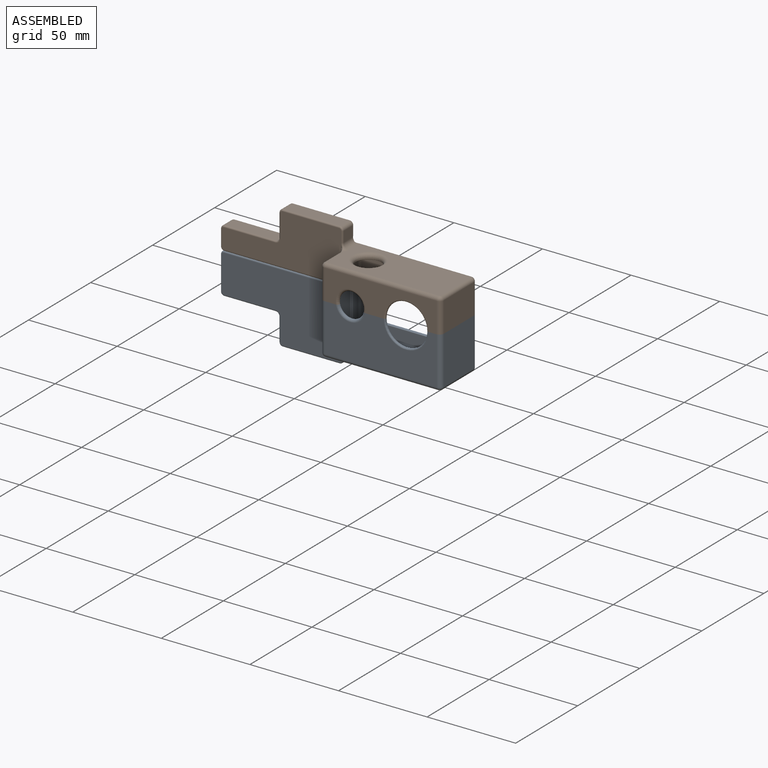
[diagram: assembled view]
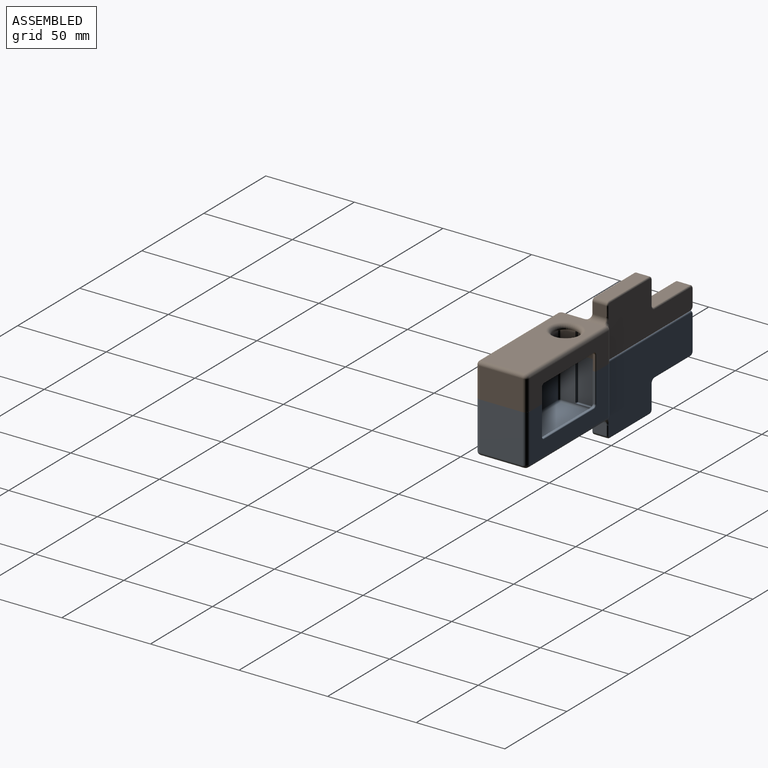
[diagram: assembled view, second angle]
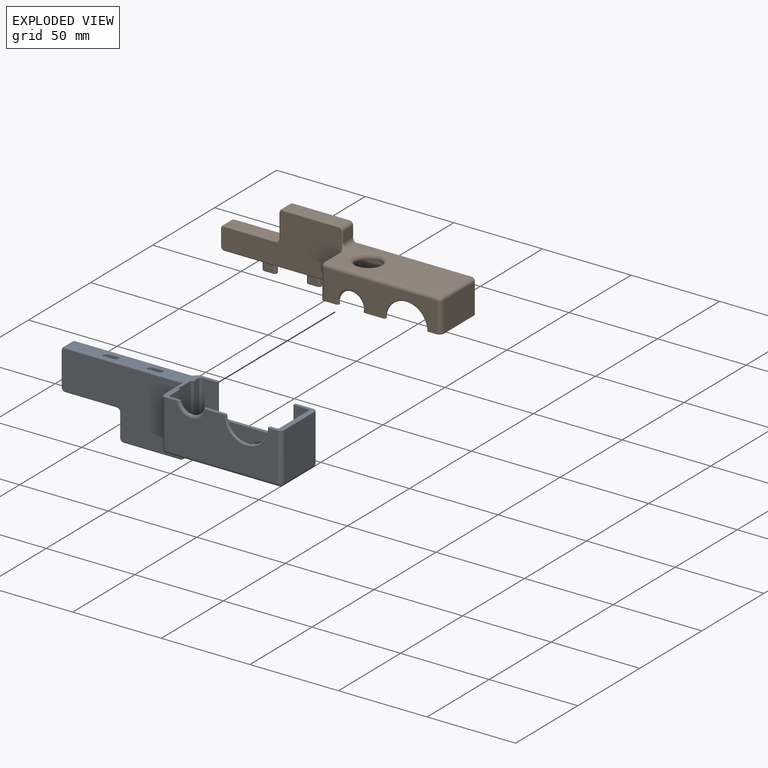
[diagram: exploded view]
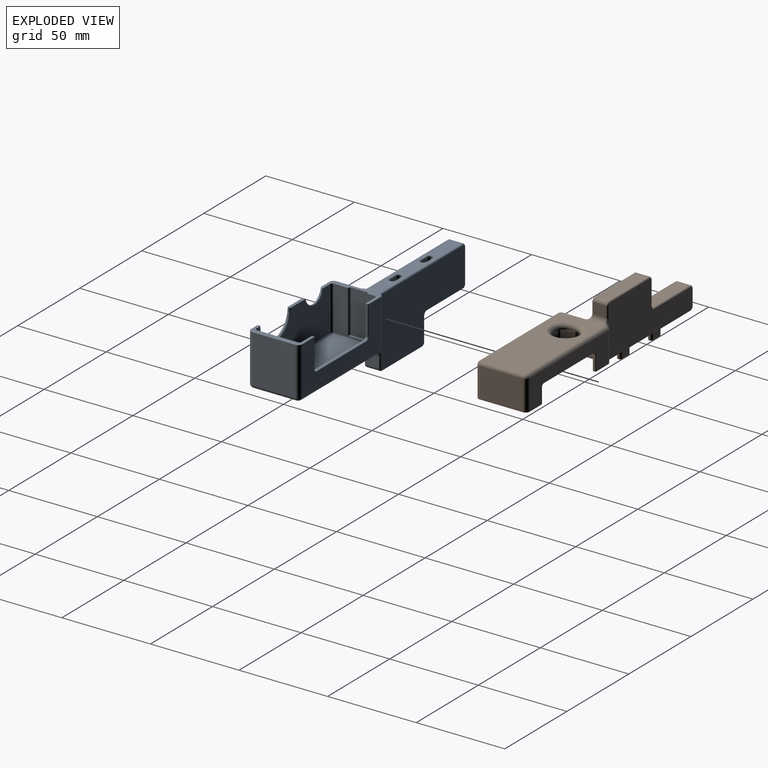
[diagram: exploded view, second angle]
ASSEMBLY  parts=2 mates=3
PART A: 146 faces, bbox 137.9x29.8x43.9 mm
  f0: plane 80.26x29.76mm, normal (0,0,1), area 527.7mm2, adj f1,f2,f5,f6,f9,f17,f21,f24
  f1: plane 63.23x27mm, normal (0,1,0), area 902.8mm2, adj f0,f3,f37,f38,f69,f136,f137,f138
  f2: plane 59.6x24.8mm, normal (0,-1,0), area 673.6mm2, adj f0,f3,f23,f24,f25,f141,f142,f143
  f3: plane 29x12.5mm, normal (0,0,1), area 110.1mm2, adj f1,f2,f5,f8,f9,f18,f20,f22
  f4: plane 12.8x1.83mm, normal (0,0,1), area 21.5mm2, adj f5,f9,f20,f33,f34,f35,f36
  f5: plane 59.6x24.8mm, normal (0,1,0), area 1166.7mm2, adj f0,f3,f4,f21,f22,f32,f34,f36
  f6: plane 27.05x14.19mm, normal (-1,0,0), area 377.8mm2, adj f0,f39,f75,f77,f78,f85
  f7: plane 64x25.14mm, normal (0,0,-1), area 1590mm2, adj f69,f70,f71,f72,f73,f74,f75,f82
  f8: plane 27x24.2mm, normal (1,0,0), area 653.4mm2, adj f3,f38,f40,f71
  f9: plane 63.2x27mm, normal (0,-1,0), area 1373.2mm2, adj f0,f3,f4,f33,f35,f39,f40,f73
  f10: plane 67.55x38.55mm, normal (0,-1,0), area 2005.2mm2, adj f57,f58,f59,f60,f61,f62,f63,f64
  f11: plane 68.19x38.4mm, normal (0,1,0), area 2020mm2, adj f46,f47,f48,f49,f50,f51,f52,f53
  f12: plane 32x7.4mm, normal (0,0,-1), area 236.8mm2, adj f44,f45,f48,f59
  f13: plane 13x7.4mm, normal (-1,0,0), area 96.2mm2, adj f41,f45,f50,f61
  f14: plane 7.4x6mm, normal (1,0,0), area 44.4mm2, adj f44,f46,f57,f83,f86
  f15: plane 29x7.4mm, normal (0,0,-1), area 214.6mm2, adj f41,f42,f52,f63
  f16: plane 19x7.4mm, normal (-1,0,0), area 140.6mm2, adj f42,f43,f54,f65
  f17: plane 24.95x23.25mm, normal (1,0,0), area 296.2mm2, adj f0,f21,f24,f28,f124,f125,f126,f129
  f18: plane 24.8x23.1mm, normal (-1,0,0), area 572.9mm2, adj f3,f22,f23,f29
  f19: plane 59.6x23.1mm, normal (0,0,1), area 1376.8mm2, adj f25,f28,f29,f32
  f20: cylinder r=11.75mm len=23.5mm, axis (0,-1,0), area 5.5mm2, adj f3,f4,f35,f36
  f21: cylinder r=1.2mm len=24.8mm, axis (0,0,-1), area 46.7mm2, adj f0,f5,f17,f30
  f22: cylinder r=1.2mm len=24.8mm, axis (0,0,1), area 46.7mm2, adj f3,f5,f18,f31
  f23: cylinder r=1.2mm len=24.8mm, axis (0,0,-1), area 46.7mm2, adj f2,f3,f18,f27
  f24: cylinder r=1.2mm len=24.8mm, axis (0,0,1), area 46.7mm2, adj f0,f2,f17,f26
  f25: cylinder r=1.2mm len=59.6mm, axis (-1,0,0), area 112.3mm2, adj f2,f19,f26,f27
  f26: sphere r=1.2mm, area 2.3mm2, adj f24,f25,f28
  f27: sphere r=1.2mm, area 1.4mm2, adj f23,f25,f29
  f28: cylinder r=1.2mm len=23.1mm, axis (0,-1,0), area 43.5mm2, adj f17,f19,f26,f30
  f29: cylinder r=1.2mm len=23.1mm, axis (0,1,0), area 43.5mm2, adj f18,f19,f27,f31
  f30: sphere r=1.2mm, area 2.3mm2, adj f21,f28,f32
  f31: sphere r=1.2mm, area 2.3mm2, adj f22,f29,f32
  f32: cylinder r=1.2mm len=59.6mm, axis (1,0,0), area 112.3mm2, adj f5,f19,f30,f31
  f33: torus R=8.4mm, axis (0,-1,0), area 44mm2, adj f0,f4,f9,f34
  f34: torus R=7.4mm, axis (0,1,0), area 12.6mm2, adj f0,f4,f5,f33
  f35: torus R=12.55mm, axis (0,-1,0), area 47.5mm2, adj f3,f4,f9,f20
  f36: torus R=12.55mm, axis (0,-1,0), area 47.5mm2, adj f3,f4,f5,f20
  f37: cylinder r=2.4mm len=27mm, axis (0,0,1), area 67.9mm2, adj f0,f1,f68,f80,f81
  f38: cylinder r=2.4mm len=27mm, axis (0,0,1), area 101.8mm2, adj f1,f3,f8,f70
  f39: cylinder r=2.4mm len=27mm, axis (0,0,1), area 101.8mm2, adj f0,f6,f9,f74
  f40: cylinder r=2.4mm len=27mm, axis (0,0,-1), area 101.8mm2, adj f3,f8,f9,f72
  f41: cylinder r=2mm len=7.4mm, axis (0,-1,0), area 23.2mm2, adj f13,f15,f51,f62
  f42: cylinder r=2mm len=7.4mm, axis (0,1,0), area 23.2mm2, adj f15,f16,f53,f64
  f43: cylinder r=2mm len=7.4mm, axis (0,1,0), area 23.2mm2, adj f0,f16,f55,f66
  f44: cylinder r=2mm len=7.4mm, axis (0,-1,0), area 23.2mm2, adj f12,f14,f47,f58
  f45: cylinder r=2mm len=7.4mm, axis (0,1,0), area 23.2mm2, adj f12,f13,f49,f60
  f46: cylinder r=0.8mm len=5.65mm, axis (0,0,-1), area 6.5mm2, adj f11,f14,f47,f86
  f47: torus R=1.2mm, axis (0,-1,0), area 3.4mm2, adj f11,f44,f46,f48
  f48: cylinder r=0.8mm len=32mm, axis (1,0,0), area 40.2mm2, adj f11,f12,f47,f49
  f49: torus R=1.2mm, axis (0,-1,0), area 3.4mm2, adj f11,f45,f48,f50
  f50: cylinder r=0.8mm len=13mm, axis (0,0,1), area 16.3mm2, adj f11,f13,f49,f51
  f51: torus R=2.8mm, axis (0,-1,0), area 4.5mm2, adj f11,f41,f50,f52
  f52: cylinder r=0.8mm len=29mm, axis (1,0,0), area 36.4mm2, adj f11,f15,f51,f53
  f53: torus R=1.2mm, axis (0,-1,0), area 3.4mm2, adj f11,f42,f52,f54
  f54: cylinder r=0.8mm len=19mm, axis (0,0,1), area 23.9mm2, adj f11,f16,f53,f55
  f55: torus R=1.2mm, axis (0,-1,0), area 3.4mm2, adj f11,f43,f54,f56
  f56: cylinder r=0.8mm len=65.9mm, axis (-1,0,0), area 82.5mm2, adj f0,f11,f55,f81
  f57: cylinder r=0.8mm len=6.86mm, axis (0,0,1), area 7.8mm2, adj f10,f14,f58,f84,f85
  f58: torus R=1.2mm, axis (0,-1,0), area 3.4mm2, adj f10,f44,f57,f59
  f59: cylinder r=0.8mm len=32mm, axis (-1,0,0), area 40.2mm2, adj f10,f12,f58,f60
  f60: torus R=1.2mm, axis (0,-1,0), area 3.4mm2, adj f10,f45,f59,f61
  f61: cylinder r=0.8mm len=13mm, axis (0,0,-1), area 16.3mm2, adj f10,f13,f60,f62
  f62: torus R=2.8mm, axis (0,-1,0), area 4.5mm2, adj f10,f41,f61,f63
  f63: cylinder r=0.8mm len=29mm, axis (-1,0,0), area 36.4mm2, adj f10,f15,f62,f64
  f64: torus R=1.2mm, axis (0,-1,0), area 3.4mm2, adj f10,f42,f63,f65
  f65: cylinder r=0.8mm len=19mm, axis (0,0,-1), area 23.9mm2, adj f10,f16,f64,f66
  f66: torus R=1.2mm, axis (0,-1,0), area 3.4mm2, adj f10,f43,f65,f67
  f67: cylinder r=0.8mm len=65.4mm, axis (1,0,0), area 82.2mm2, adj f0,f10,f66,f78
  f68: torus R=0.4mm, axis (0,0,1), area 2.6mm2, adj f37,f69,f79
  f69: cylinder r=2mm len=63.23mm, axis (1,0,0), area 198.2mm2, adj f1,f7,f68,f70,f79,f88,f89
  f70: torus R=0.4mm, axis (0,0,1), area 8.3mm2, adj f7,f38,f69,f71
  f71: cylinder r=2mm len=24.2mm, axis (0,1,0), area 76mm2, adj f7,f8,f70,f72
  f72: torus R=0.4mm, axis (0,0,1), area 8.3mm2, adj f7,f40,f71,f73
  f73: cylinder r=2mm len=63.2mm, axis (-1,0,0), area 198.5mm2, adj f7,f9,f72,f74
  f74: torus R=0.4mm, axis (0,0,1), area 8.3mm2, adj f7,f39,f73,f75
  f75: cylinder r=2mm len=13.83mm, axis (0,-1,0), area 42.6mm2, adj f6,f7,f74,f85
  f76: torus R=3.6mm, axis (0,-1,0), area 0.7mm2, adj f10,f77,f85
  f77: cylinder r=1.6mm len=26.2mm, axis (0,0,1), area 63.6mm2, adj f6,f10,f76,f78,f85
  f78: torus R=2.4mm, axis (-1,0,0), area 2.9mm2, adj f0,f6,f67,f77
  f79: bspline ~4.51x3.93mm, area 4.3mm2, adj f11,f68,f69,f80,f87,f88
  f80: cylinder r=1.6mm len=26.2mm, axis (0,0,1), area 43.9mm2, adj f11,f37,f79,f81
  f81: bspline ~2.91x1.92mm, area 2.3mm2, adj f0,f37,f56,f80
  f82: torus R=3.8mm, axis (0,0,1), area 1.2mm2, adj f7,f83,f88
  f83: cylinder r=3mm len=7.4mm, axis (0,-1,0), area 34.4mm2, adj f7,f14,f82,f84,f86,f87
  f84: torus R=3.8mm, axis (0,0,1), area 6.6mm2, adj f7,f57,f83,f85
  f85: bspline ~7.71x3.39mm, area 14.2mm2, adj f6,f10,f57,f75,f76,f77,f84
  f86: torus R=4mm, axis (0,-1,0), area 4.9mm2, adj f11,f14,f46,f83,f87
  f87: bspline ~1.76x1.41mm, area 1mm2, adj f79,f83,f86,f88
  f88: bspline ~2.9x1.66mm, area 1.9mm2, adj f69,f79,f82,f87,f89
  f89: bspline ~0.92x0.8mm, area 0mm2, adj f7,f69,f88
  f90: plane 5.4x5.2mm, normal (0,1,0), area 28.1mm2, adj f91,f93,f103,f107
  f91: cylinder r=1.5mm len=5.4mm, axis (0,0,1), area 25.4mm2, adj f90,f92,f101,f105
  f92: plane 5.4x5.2mm, normal (0,-1,0), area 28.1mm2, adj f91,f93,f100,f104
  f93: cylinder r=1.5mm len=5.4mm, axis (0,0,1), area 25.4mm2, adj f90,f92,f102,f106
  f94: plane 7x1.8mm, normal (0,0,1), area 11.9mm2, adj f104,f105,f106,f107
  f95: plane 5.4x5.2mm, normal (0,1,0), area 28.1mm2, adj f96,f98,f111,f115
  f96: cylinder r=1.5mm len=5.4mm, axis (0,0,1), area 25.4mm2, adj f95,f97,f109,f113
  f97: plane 5.4x5.2mm, normal (0,-1,0), area 28.1mm2, adj f96,f98,f108,f112
  f98: cylinder r=1.5mm len=5.4mm, axis (0,0,1), area 25.4mm2, adj f95,f97,f110,f114
  f99: plane 7x1.8mm, normal (0,0,1), area 11.9mm2, adj f112,f113,f114,f115
  f100: cylinder r=0.6mm len=5.2mm, axis (1,0,0), area 4.9mm2, adj f0,f92,f101,f102
  f101: torus R=2.1mm, axis (0,0,1), area 5.1mm2, adj f0,f91,f100,f103
  f102: torus R=2.1mm, axis (0,0,1), area 5.1mm2, adj f0,f93,f100,f103
  f103: cylinder r=0.6mm len=5.2mm, axis (-1,0,0), area 4.9mm2, adj f0,f90,f101,f102
  f104: cylinder r=0.6mm len=5.2mm, axis (-1,0,0), area 4.9mm2, adj f92,f94,f105,f106
  f105: torus R=0.9mm, axis (0,0,1), area 3.8mm2, adj f91,f94,f104,f107
  f106: torus R=0.9mm, axis (0,0,1), area 3.8mm2, adj f93,f94,f104,f107
  f107: cylinder r=0.6mm len=5.2mm, axis (1,0,0), area 4.9mm2, adj f90,f94,f105,f106
  f108: cylinder r=0.6mm len=5.2mm, axis (1,0,0), area 4.9mm2, adj f0,f97,f109,f110
  f109: torus R=2.1mm, axis (0,0,1), area 5.1mm2, adj f0,f96,f108,f111
  f110: torus R=2.1mm, axis (0,0,1), area 5.1mm2, adj f0,f98,f108,f111
  f111: cylinder r=0.6mm len=5.2mm, axis (-1,0,0), area 4.9mm2, adj f0,f95,f109,f110
  f112: cylinder r=0.6mm len=5.2mm, axis (-1,0,0), area 4.9mm2, adj f97,f99,f113,f114
  f113: torus R=0.9mm, axis (0,0,1), area 3.8mm2, adj f96,f99,f112,f115
  f114: torus R=0.9mm, axis (0,0,1), area 3.8mm2, adj f98,f99,f112,f115
  f115: cylinder r=0.6mm len=5.2mm, axis (1,0,0), area 4.9mm2, adj f95,f99,f113,f114
  f116: plane 16.6x0.95mm, normal (-1,0,0), area 15.8mm2, adj f3,f119,f136,f141
  f117: plane 40.2x0.95mm, normal (0,0,1), area 38.2mm2, adj f119,f120,f138,f143
  f118: plane 16.6x0.95mm, normal (1,0,0), area 15.8mm2, adj f0,f120,f140,f145
  f119: cylinder r=1.4mm len=1.4mm, axis (0,1,0), area 2.1mm2, adj f116,f117,f137,f142
  f120: cylinder r=1.4mm len=1.4mm, axis (0,-1,0), area 2.1mm2, adj f117,f118,f139,f144
  f121: plane 24.1x0.4mm, normal (0,1,0), area 9.6mm2, adj f0,f125,f128,f130
  f122: plane 24.1x0.4mm, normal (0,-1,0), area 9.6mm2, adj f0,f126,f127,f134
  f123: plane 24.1x9.7mm, normal (1,0,0), area 233.8mm2, adj f0,f127,f128,f132
  f124: plane 9.91x0.8mm, normal (0,0,1), area 7.8mm2, adj f17,f129,f130,f132,f134,f135
  f125: cylinder r=0.4mm len=24.1mm, axis (0,0,-1), area 15.1mm2, adj f0,f17,f121,f129
  f126: cylinder r=0.4mm len=24.1mm, axis (0,0,1), area 15.1mm2, adj f0,f17,f122,f135
  f127: cylinder r=0.4mm len=24.1mm, axis (0,0,-1), area 15.1mm2, adj f0,f122,f123,f133
  f128: cylinder r=0.4mm len=24.1mm, axis (0,0,1), area 15.1mm2, adj f0,f121,f123,f131
  f129: torus R=0.8mm, axis (0,0,1), area 0.3mm2, adj f17,f124,f125,f130
  f130: cylinder r=0.4mm len=0.4mm, axis (1,0,0), area 0.3mm2, adj f121,f124,f129,f131
  f131: sphere r=0.4mm, area 0.3mm2, adj f128,f130,f132
  f132: cylinder r=0.4mm len=9.7mm, axis (0,-1,0), area 6.1mm2, adj f123,f124,f131,f133
  f133: sphere r=0.4mm, area 0.3mm2, adj f127,f132,f134
  f134: cylinder r=0.4mm len=0.4mm, axis (-1,0,0), area 0.3mm2, adj f122,f124,f133,f135
  f135: torus R=0.8mm, axis (0,0,1), area 0.3mm2, adj f17,f124,f126,f134
  f136: cylinder r=0.4mm len=16.6mm, axis (0,0,-1), area 10.4mm2, adj f1,f3,f116,f137
  f137: torus R=1.8mm, axis (0,-1,0), area 1.5mm2, adj f1,f119,f136,f138
  f138: cylinder r=0.4mm len=40.2mm, axis (-1,0,0), area 25.3mm2, adj f1,f117,f137,f139
  f139: torus R=1.8mm, axis (0,-1,0), area 1.5mm2, adj f1,f120,f138,f140
  f140: cylinder r=0.4mm len=16.6mm, axis (0,0,1), area 10.4mm2, adj f0,f1,f118,f139
  f141: cylinder r=0.4mm len=16.6mm, axis (0,0,1), area 10.4mm2, adj f2,f3,f116,f142
  f142: torus R=1.8mm, axis (0,-1,0), area 1.5mm2, adj f2,f119,f141,f143
  f143: cylinder r=0.4mm len=40.2mm, axis (1,0,0), area 25.3mm2, adj f2,f117,f142,f144
  f144: torus R=1.8mm, axis (0,-1,0), area 1.5mm2, adj f2,f120,f143,f145
  f145: cylinder r=0.4mm len=16.6mm, axis (0,0,-1), area 10.4mm2, adj f0,f2,f118,f144
PART B: 149 faces, bbox 137.9x29.8x36.9 mm
  f0: plane 80.26x29.76mm, normal (0,0,-1), area 532.4mm2, adj f1,f2,f5,f7,f10,f12,f23,f24
  f1: plane 63.23x17mm, normal (0,1,0), area 620.8mm2, adj f0,f3,f25,f26,f70,f139,f140,f141
  f2: plane 59.6x14.8mm, normal (0,-1,0), area 428mm2, adj f0,f3,f21,f24,f33,f144,f145,f146
  f3: plane 29x12.5mm, normal (0,0,-1), area 110.1mm2, adj f1,f2,f5,f9,f10,f11,f14,f21
  f4: plane 12.8x1.83mm, normal (0,0,-1), area 21.5mm2, adj f5,f10,f14,f72,f73,f74,f75
  f5: plane 59.6x14.8mm, normal (0,1,0), area 526.6mm2, adj f0,f3,f4,f22,f23,f32,f72,f75
  f6: plane 13x7.4mm, normal (-1,0,0), area 96.2mm2, adj f37,f41,f48,f59
  f7: plane 17.05x14.19mm, normal (-1,0,0), area 237.8mm2, adj f0,f27,f64,f79,f80,f87
  f8: plane 64x25.14mm, normal (0,0,1), area 1324.1mm2, adj f64,f65,f66,f67,f68,f69,f70,f77
  f9: plane 24.2x17mm, normal (1,0,0), area 411.4mm2, adj f3,f26,f28,f68
  f10: plane 63.2x17mm, normal (0,-1,0), area 691.1mm2, adj f0,f3,f4,f27,f28,f66,f73,f74
  f11: plane 23.1x14.8mm, normal (-1,0,0), area 341.9mm2, adj f3,f21,f22,f36
  f12: plane 23.25x14.95mm, normal (1,0,0), area 178.2mm2, adj f0,f23,f24,f29,f127,f128,f131,f132
  f13: plane 59.6x23.1mm, normal (0,0,-1), area 1204.7mm2, adj f29,f32,f33,f36,f78
  f14: cylinder r=11.75mm len=23.5mm, axis (0,-1,0), area 5.5mm2, adj f3,f4,f72,f73
  f15: plane 7.4x6mm, normal (1,0,0), area 44.4mm2, adj f40,f52,f63,f86,f92
  f16: plane 67.55x28.55mm, normal (0,-1,0), area 1339.2mm2, adj f42,f43,f44,f45,f46,f47,f48,f49
  f17: plane 32x7.4mm, normal (0,0,1), area 236.8mm2, adj f40,f41,f50,f61
  f18: plane 68.19x28.4mm, normal (0,1,0), area 1349mm2, adj f53,f54,f55,f56,f57,f58,f59,f60
  f19: plane 29x7.4mm, normal (0,0,1), area 214.6mm2, adj f37,f39,f46,f57
  f20: plane 9x7.4mm, normal (-1,0,0), area 66.6mm2, adj f38,f39,f44,f55
  f21: cylinder r=1.2mm len=14.8mm, axis (0,0,1), area 27.9mm2, adj f2,f3,f11,f35
  f22: cylinder r=1.2mm len=14.8mm, axis (0,0,-1), area 27.9mm2, adj f3,f5,f11,f34
  f23: cylinder r=1.2mm len=14.8mm, axis (0,0,1), area 27.9mm2, adj f0,f5,f12,f30
  f24: cylinder r=1.2mm len=14.8mm, axis (0,0,-1), area 27.9mm2, adj f0,f2,f12,f31
  f25: cylinder r=2.4mm len=17mm, axis (0,0,1), area 42.8mm2, adj f0,f1,f71,f82,f83
  f26: cylinder r=2.4mm len=17mm, axis (0,0,1), area 64.1mm2, adj f1,f3,f9,f69
  f27: cylinder r=2.4mm len=17mm, axis (0,0,1), area 64.1mm2, adj f0,f7,f10,f65
  f28: cylinder r=2.4mm len=17mm, axis (0,0,-1), area 64.1mm2, adj f3,f9,f10,f67
  f29: cylinder r=1.2mm len=23.1mm, axis (0,1,0), area 43.5mm2, adj f12,f13,f30,f31
  f30: sphere r=1.2mm, area 2.3mm2, adj f23,f29,f32
  f31: sphere r=1.2mm, area 1.4mm2, adj f24,f29,f33
  f32: cylinder r=1.2mm len=59.6mm, axis (-1,0,0), area 112.3mm2, adj f5,f13,f30,f34
  f33: cylinder r=1.2mm len=59.6mm, axis (1,0,0), area 112.3mm2, adj f2,f13,f31,f35
  f34: sphere r=1.2mm, area 2.3mm2, adj f22,f32,f36
  f35: sphere r=1.2mm, area 3.1mm2, adj f21,f33,f36
  f36: cylinder r=1.2mm len=23.1mm, axis (0,-1,0), area 43.5mm2, adj f11,f13,f34,f35
  f37: cylinder r=2mm len=7.4mm, axis (0,1,0), area 23.2mm2, adj f6,f19,f47,f58
  f38: cylinder r=2mm len=7.4mm, axis (0,-1,0), area 23.2mm2, adj f0,f20,f43,f54
  f39: cylinder r=2mm len=7.4mm, axis (0,-1,0), area 23.2mm2, adj f19,f20,f45,f56
  f40: cylinder r=2mm len=7.4mm, axis (0,1,0), area 23.2mm2, adj f15,f17,f51,f62
  f41: cylinder r=2mm len=7.4mm, axis (0,-1,0), area 23.2mm2, adj f6,f17,f49,f60
  f42: cylinder r=0.8mm len=65.4mm, axis (-1,0,0), area 82.2mm2, adj f0,f16,f43,f79
  f43: torus R=1.2mm, axis (0,-1,0), area 3.4mm2, adj f16,f38,f42,f44
  f44: cylinder r=0.8mm len=9mm, axis (0,0,-1), area 11.3mm2, adj f16,f20,f43,f45
  f45: torus R=1.2mm, axis (0,-1,0), area 3.4mm2, adj f16,f39,f44,f46
  f46: cylinder r=0.8mm len=29mm, axis (1,0,0), area 36.4mm2, adj f16,f19,f45,f47
  f47: torus R=2.8mm, axis (0,-1,0), area 4.5mm2, adj f16,f37,f46,f48
  f48: cylinder r=0.8mm len=13mm, axis (0,0,-1), area 16.3mm2, adj f6,f16,f47,f49
  f49: torus R=1.2mm, axis (0,-1,0), area 3.4mm2, adj f16,f41,f48,f50
  f50: cylinder r=0.8mm len=32mm, axis (1,0,0), area 40.2mm2, adj f16,f17,f49,f51
  f51: torus R=1.2mm, axis (0,-1,0), area 3.4mm2, adj f16,f40,f50,f52
  f52: cylinder r=0.8mm len=6.86mm, axis (0,0,1), area 7.8mm2, adj f15,f16,f51,f87,f88
  f53: cylinder r=0.8mm len=65.9mm, axis (1,0,0), area 82.5mm2, adj f0,f18,f54,f82
  f54: torus R=1.2mm, axis (0,-1,0), area 3.4mm2, adj f18,f38,f53,f55
  f55: cylinder r=0.8mm len=9mm, axis (0,0,1), area 11.3mm2, adj f18,f20,f54,f56
  f56: torus R=1.2mm, axis (0,-1,0), area 3.4mm2, adj f18,f39,f55,f57
  f57: cylinder r=0.8mm len=29mm, axis (-1,0,0), area 36.4mm2, adj f18,f19,f56,f58
  f58: torus R=2.8mm, axis (0,-1,0), area 4.5mm2, adj f18,f37,f57,f59
  f59: cylinder r=0.8mm len=13mm, axis (0,0,1), area 16.3mm2, adj f6,f18,f58,f60
  f60: torus R=1.2mm, axis (0,-1,0), area 3.4mm2, adj f18,f41,f59,f61
  f61: cylinder r=0.8mm len=32mm, axis (-1,0,0), area 40.2mm2, adj f17,f18,f60,f62
  f62: torus R=1.2mm, axis (0,-1,0), area 3.4mm2, adj f18,f40,f61,f63
  f63: cylinder r=0.8mm len=5.65mm, axis (0,0,-1), area 6.5mm2, adj f15,f18,f62,f92
  f64: cylinder r=2mm len=13.83mm, axis (0,1,0), area 42.6mm2, adj f7,f8,f65,f87
  f65: torus R=0.4mm, axis (0,0,1), area 8.3mm2, adj f8,f27,f64,f66
  f66: cylinder r=2mm len=63.2mm, axis (1,0,0), area 198.5mm2, adj f8,f10,f65,f67
  f67: torus R=0.4mm, axis (0,0,1), area 8.3mm2, adj f8,f28,f66,f68
  f68: cylinder r=2mm len=24.2mm, axis (0,-1,0), area 76mm2, adj f8,f9,f67,f69
  f69: torus R=0.4mm, axis (0,0,1), area 8.3mm2, adj f8,f26,f68,f70
  f70: cylinder r=2mm len=63.23mm, axis (-1,0,0), area 198.2mm2, adj f1,f8,f69,f71,f84,f89,f90
  f71: torus R=0.4mm, axis (0,0,1), area 2.6mm2, adj f25,f70,f84
  f72: torus R=12.55mm, axis (0,-1,0), area 47.5mm2, adj f3,f4,f5,f14
  f73: torus R=12.55mm, axis (0,-1,0), area 47.5mm2, adj f3,f4,f10,f14
  f74: torus R=8.4mm, axis (0,-1,0), area 56.7mm2, adj f0,f4,f10,f75
  f75: torus R=7.4mm, axis (0,1,0), area 16.5mm2, adj f0,f4,f5,f74
  f76: cylinder r=7mm len=14mm, axis (0,0,1), area 17.6mm2, adj f77,f78
  f77: torus R=9.2mm, axis (0,0,1), area 169.4mm2, adj f8,f76
  f78: torus R=7.4mm, axis (0,0,-1), area 28.2mm2, adj f13,f76
  f79: torus R=2.4mm, axis (-1,0,0), area 2.9mm2, adj f0,f7,f42,f80
  f80: cylinder r=1.6mm len=16.2mm, axis (0,0,1), area 38.5mm2, adj f7,f16,f79,f81,f87
  f81: torus R=3.6mm, axis (0,-1,0), area 0.7mm2, adj f16,f80,f87
  f82: bspline ~2.91x1.92mm, area 2.3mm2, adj f0,f25,f53,f83
  f83: cylinder r=1.6mm len=16.2mm, axis (0,0,1), area 27.1mm2, adj f18,f25,f82,f84
  f84: bspline ~4.51x3.41mm, area 4.3mm2, adj f18,f70,f71,f83,f90,f91
  f85: torus R=3.8mm, axis (0,0,1), area 1.2mm2, adj f8,f86,f90
  f86: cylinder r=3mm len=7.4mm, axis (0,1,0), area 34.4mm2, adj f8,f15,f85,f88,f91,f92
  f87: bspline ~7.71x3.45mm, area 14.2mm2, adj f7,f16,f52,f64,f80,f81,f88
  f88: torus R=3.8mm, axis (0,0,1), area 6.6mm2, adj f8,f52,f86,f87
  f89: bspline ~0.92x0.8mm, area 0mm2, adj f8,f70,f90
  f90: bspline ~2.95x1.7mm, area 1.9mm2, adj f70,f84,f85,f89,f91
  f91: bspline ~1.76x1.41mm, area 1mm2, adj f84,f86,f90,f92
  f92: torus R=4mm, axis (0,-1,0), area 4.9mm2, adj f15,f18,f63,f86,f91
  f93: plane 5.2x4.8mm, normal (0,1,0), area 25mm2, adj f94,f96,f111,f115
  f94: cylinder r=1.4mm len=4.8mm, axis (0,0,1), area 21.1mm2, adj f93,f95,f112,f116
  f95: plane 5.2x4.8mm, normal (0,-1,0), area 25mm2, adj f94,f96,f114,f118
  f96: cylinder r=1.4mm len=4.8mm, axis (0,0,1), area 21.1mm2, adj f93,f95,f113,f117
  f97: plane 6.8x1.6mm, normal (0,0,-1), area 10.3mm2, adj f115,f116,f117,f118
  f98: plane 5.2x4.8mm, normal (0,1,0), area 25mm2, adj f99,f101,f103,f107
  f99: cylinder r=1.4mm len=4.8mm, axis (0,0,1), area 21.1mm2, adj f98,f100,f104,f108
  f100: plane 5.2x4.8mm, normal (0,-1,0), area 25mm2, adj f99,f101,f106,f110
  f101: cylinder r=1.4mm len=4.8mm, axis (0,0,1), area 21.1mm2, adj f98,f100,f105,f109
  f102: plane 6.8x1.6mm, normal (0,0,-1), area 10.3mm2, adj f107,f108,f109,f110
  f103: cylinder r=0.6mm len=5.2mm, axis (-1,0,0), area 4.9mm2, adj f0,f98,f104,f105
  f104: torus R=2mm, axis (0,0,1), area 4.8mm2, adj f0,f99,f103,f106
  f105: torus R=2mm, axis (0,0,1), area 4.8mm2, adj f0,f101,f103,f106
  f106: cylinder r=0.6mm len=5.2mm, axis (1,0,0), area 4.9mm2, adj f0,f100,f104,f105
  f107: cylinder r=0.6mm len=5.2mm, axis (-1,0,0), area 4.9mm2, adj f98,f102,f108,f109
  f108: torus R=0.8mm, axis (0,0,-1), area 3.5mm2, adj f99,f102,f107,f110
  f109: torus R=0.8mm, axis (0,0,-1), area 3.5mm2, adj f101,f102,f107,f110
  f110: cylinder r=0.6mm len=5.2mm, axis (1,0,0), area 4.9mm2, adj f100,f102,f108,f109
  f111: cylinder r=0.6mm len=5.2mm, axis (-1,0,0), area 4.9mm2, adj f0,f93,f112,f113
  f112: torus R=2mm, axis (0,0,1), area 4.8mm2, adj f0,f94,f111,f114
  f113: torus R=2mm, axis (0,0,1), area 4.8mm2, adj f0,f96,f111,f114
  f114: cylinder r=0.6mm len=5.2mm, axis (1,0,0), area 4.9mm2, adj f0,f95,f112,f113
  f115: cylinder r=0.6mm len=5.2mm, axis (-1,0,0), area 4.9mm2, adj f93,f97,f116,f117
  f116: torus R=0.8mm, axis (0,0,-1), area 3.5mm2, adj f94,f97,f115,f118
  f117: torus R=0.8mm, axis (0,0,-1), area 3.5mm2, adj f96,f97,f115,f118
  f118: cylinder r=0.6mm len=5.2mm, axis (1,0,0), area 4.9mm2, adj f95,f97,f116,f117
  f119: plane 8.6x0.95mm, normal (1,0,0), area 8.2mm2, adj f0,f122,f139,f144
  f120: plane 40.2x0.95mm, normal (0,0,-1), area 38.2mm2, adj f122,f123,f141,f146
  f121: plane 8.6x0.95mm, normal (-1,0,0), area 8.2mm2, adj f3,f123,f143,f148
  f122: cylinder r=1.4mm len=1.4mm, axis (0,1,0), area 2.1mm2, adj f119,f120,f140,f145
  f123: cylinder r=1.4mm len=1.4mm, axis (0,-1,0), area 2.1mm2, adj f120,f121,f142,f147
  f124: plane 14.1x0.4mm, normal (0,1,0), area 5.6mm2, adj f0,f128,f129,f133
  f125: plane 14.1x9.7mm, normal (1,0,0), area 136.8mm2, adj f0,f129,f130,f135
  f126: plane 14.1x0.4mm, normal (0,-1,0), area 5.6mm2, adj f0,f130,f131,f137
  f127: plane 9.91x0.8mm, normal (0,0,-1), area 7.8mm2, adj f12,f132,f133,f135,f137,f138
  f128: cylinder r=0.4mm len=14.1mm, axis (0,0,-1), area 8.9mm2, adj f0,f12,f124,f132
  f129: cylinder r=0.4mm len=14.1mm, axis (0,0,-1), area 8.9mm2, adj f0,f124,f125,f134
  f130: cylinder r=0.4mm len=14.1mm, axis (0,0,1), area 8.9mm2, adj f0,f125,f126,f136
  f131: cylinder r=0.4mm len=14.1mm, axis (0,0,1), area 8.9mm2, adj f0,f12,f126,f138
  f132: torus R=0.8mm, axis (0,0,-1), area 0.3mm2, adj f12,f127,f128,f133
  f133: cylinder r=0.4mm len=0.4mm, axis (-1,0,0), area 0.3mm2, adj f124,f127,f132,f134
  f134: sphere r=0.4mm, area 0.3mm2, adj f129,f133,f135
  f135: cylinder r=0.4mm len=9.7mm, axis (0,1,0), area 6.1mm2, adj f125,f127,f134,f136
  f136: sphere r=0.4mm, area 0.2mm2, adj f130,f135,f137
  f137: cylinder r=0.4mm len=0.4mm, axis (1,0,0), area 0.3mm2, adj f126,f127,f136,f138
  f138: torus R=0.8mm, axis (0,0,-1), area 0.3mm2, adj f12,f127,f131,f137
  f139: cylinder r=0.4mm len=8.6mm, axis (0,0,1), area 5.4mm2, adj f0,f1,f119,f140
  f140: torus R=1.8mm, axis (0,-1,0), area 1.5mm2, adj f1,f122,f139,f141
  f141: cylinder r=0.4mm len=40.2mm, axis (1,0,0), area 25.3mm2, adj f1,f120,f140,f142
  f142: torus R=1.8mm, axis (0,-1,0), area 1.5mm2, adj f1,f123,f141,f143
  f143: cylinder r=0.4mm len=8.6mm, axis (0,0,-1), area 5.4mm2, adj f1,f3,f121,f142
  f144: cylinder r=0.4mm len=8.6mm, axis (0,0,-1), area 5.4mm2, adj f0,f2,f119,f145
  f145: torus R=1.8mm, axis (0,-1,0), area 1.5mm2, adj f2,f122,f144,f146
  f146: cylinder r=0.4mm len=40.2mm, axis (-1,0,0), area 25.3mm2, adj f2,f120,f145,f147
  f147: torus R=1.8mm, axis (0,-1,0), area 1.5mm2, adj f2,f123,f146,f148
  f148: cylinder r=0.4mm len=8.6mm, axis (0,0,1), area 5.4mm2, adj f2,f3,f121,f147
PLACE A at identity
PLACE B at identity fixed
MATE planar A.f16 <-> B.f20  axis (-1,0,0) through (-69,-6.5,-11.5)mm
MATE planar A.f10 <-> B.f16  axis (0,-1,0) through (-30.06,-11,-17.06)mm
MATE planar A.f4 <-> B.f3  axis (0,0,1) through (30.25,-28.12,0)mm
